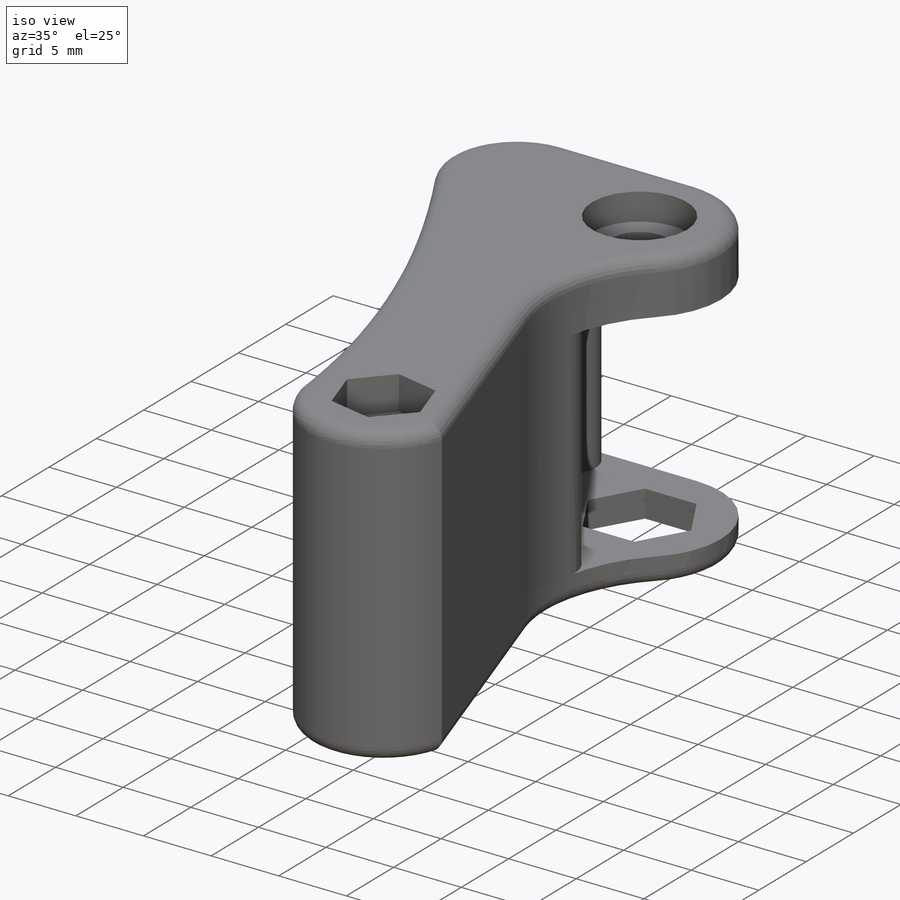
[diagram: iso view]
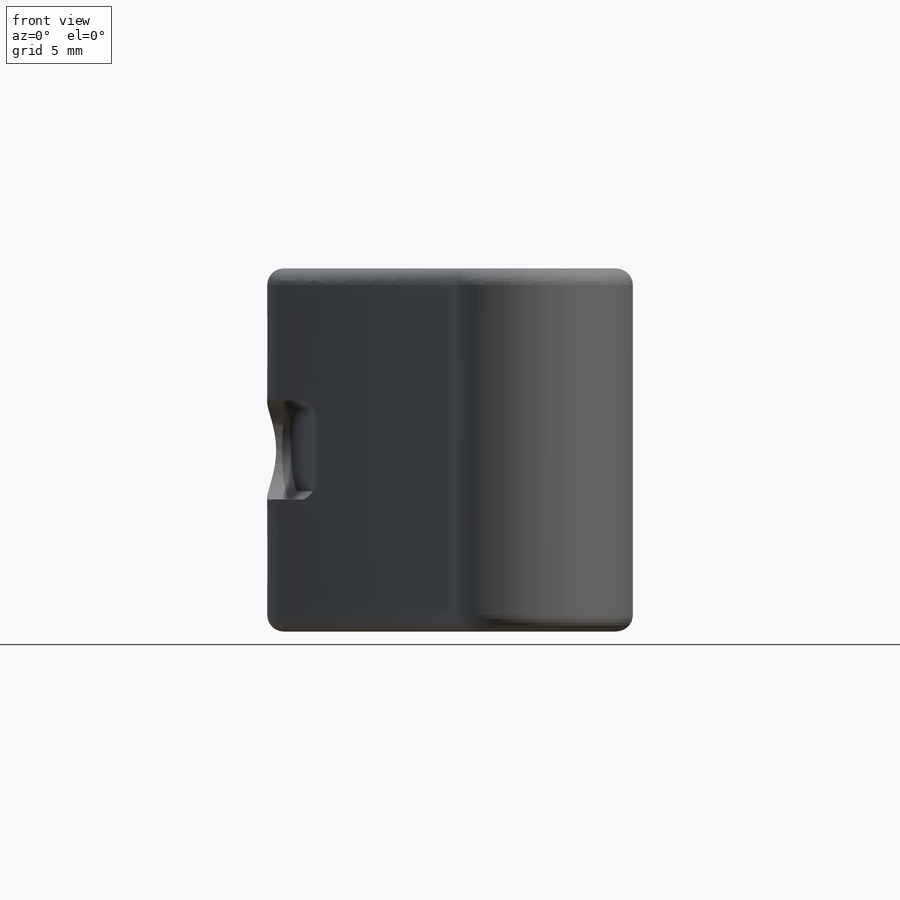
[diagram: front view]
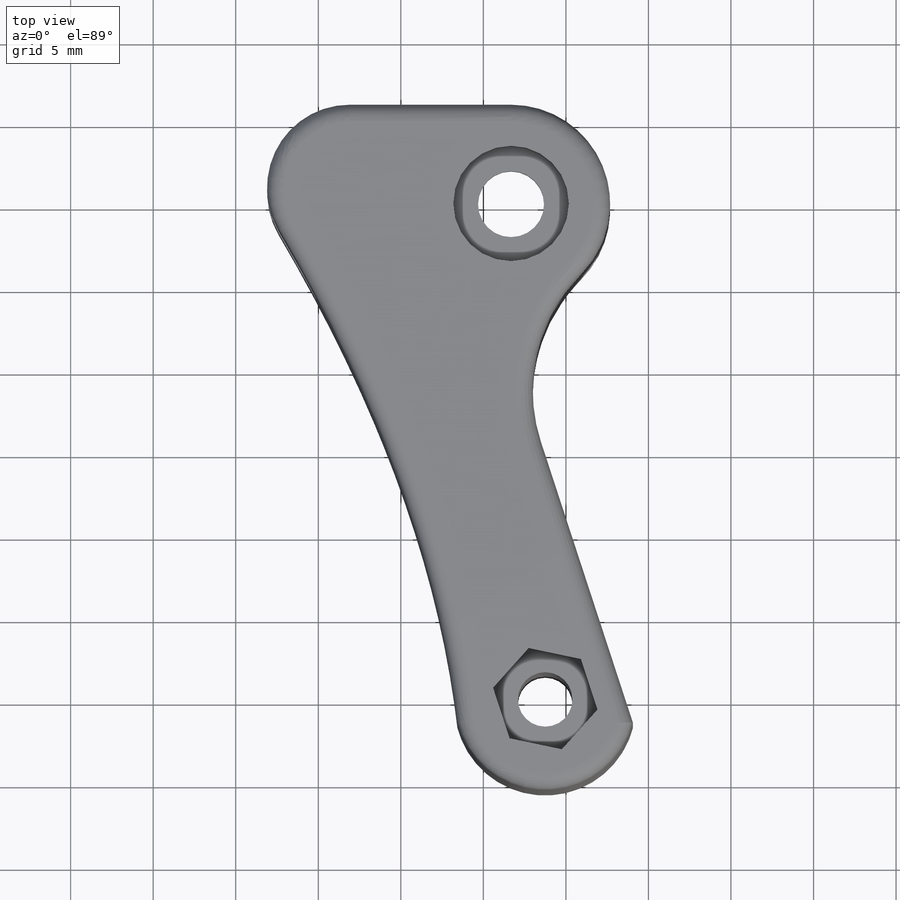
[diagram: top view]
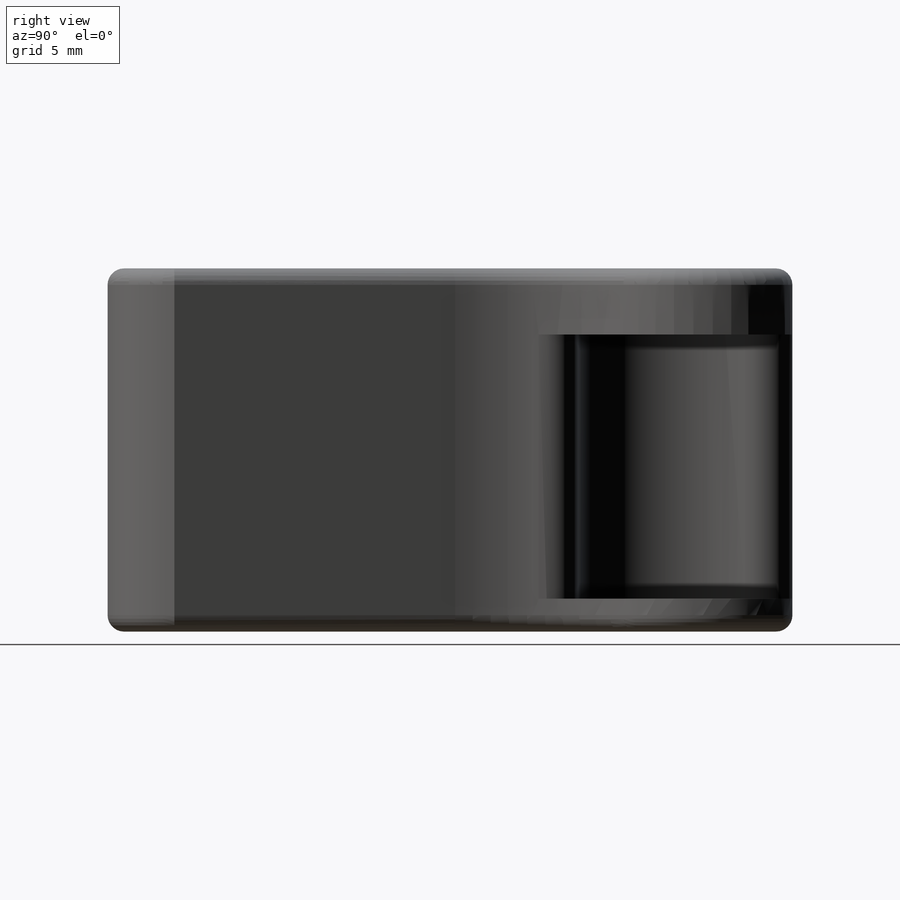
[diagram: right view]
SOLIDWORKS PART (.sldprt)
format: sldprt  version: not decoded by parser v0  size: 430,592 bytes
history: native  units: mm
features: sketch x8, cut_extrude x6, plane x5, fillet x4, material x1, extrude x1, chamfer x1 (+9 scaffold rows collapsed)
feature tree (35):
  scaffold x9  (default folders/planes/origin — collapsed)
  material  "Material <sin especificar>"
  plane  "Alzado"
  plane  "Planta"
  plane  "Vista lateral"
  sketch  "Croquis1"  dims[c1.D11=12.0mm c1.D13=4.0mm c1.D14=3.3mm c1.D1=13.0mm c1.D2=28.0mm c1.D3=50.0mm c1.D4=50.0mm c1.D5=~97.955728mm c1.D6=13.0mm c1.D7=28.0mm c1.D8=~8.435807mm c1.D9=~15.324726mm c1.D10=8.44mm c2.D11=15.32mm c2.D12=~18.769185mm c2.D13=~18.769185mm c2.D2=15.32mm c2.D3=8.44mm c2.D8=~18.769185mm c2.D5=50.0mm c2.D1=13.0mm c2.D6=28.0mm c2.D7=10.0mm c2.D9=5.5mm c2.D10=10.0mm c3.D12=15.0mm c3.D15=12.4mm]
  extrude  "Saliente-Extruir2"  Depth=22mm
  fillet  "Redondeo2"  Radius=5mm
  sketch  "Croquis2"  dims[c1.D1=15.0mm c1.D2=5.0mm c1.D3=16.0mm c1.D4=5.0mm c2.D1=10.0mm c2.D2=22.0mm c2.D3=3.0mm c2.D4=4.0mm c2.D5=2.0mm]
  sketch  "Croquis4"  dims[D1=6.6mm]
  cut_extrude  "Cortar-Extruir7"  Depth=16mm
  sketch  "Croquis6"  dims[D1=14.0mm]
  cut_extrude  "Cortar-Extruir8"  Depth=16mm
  cut_extrude  "Cortar-Extruir9"  Depth=16mm
  sketch  "Croquis7"  dims[D1=7.0mm]
  cut_extrude  "Cortar-Extruir10"  Depth=2mm
  plane  "Plano1"
  plane  "Plano2"  Offset=7mm
  sketch  "Croquis8"  dims[D1=6.0mm D2=10.0mm D3=5.0mm]
  cut_extrude  "Cortar-Extruir12"  Depth=3mm
  chamfer  "Chaflán1"  Distance=0.5mm Angle=45deg
  sketch  "Croquis10"
  sketch  "Croquis11"  dims[D1=5.6mm]
  cut_extrude  "Cortar-Extruir13"  Depth=2.5mm
  fillet  "Redondeo6"  Radius=10mm
  fillet  "Redondeo7"  Radius=2mm
  fillet  "Redondeo5"  Radius=1mm
decode coverage: 19 of 20 modeling features carry decoded parameters
note: ~ marks probable driven/reference dimensions
note: suppression state not decoded; provenance and decode notes live in map.json
